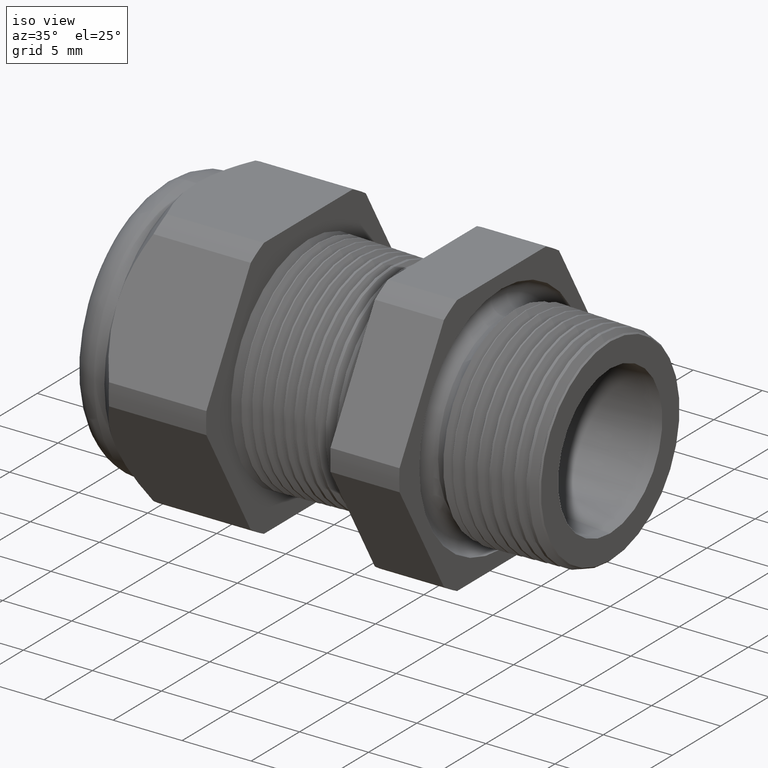
[diagram: clean part render]
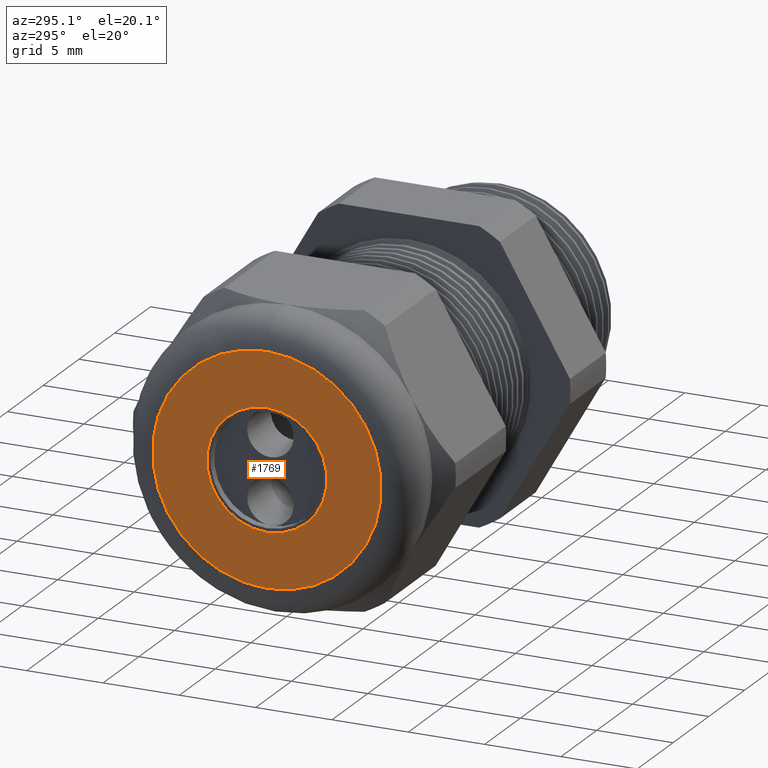
[diagram: tour spotlight — one face highlighted and labeled with its STEP entity id]
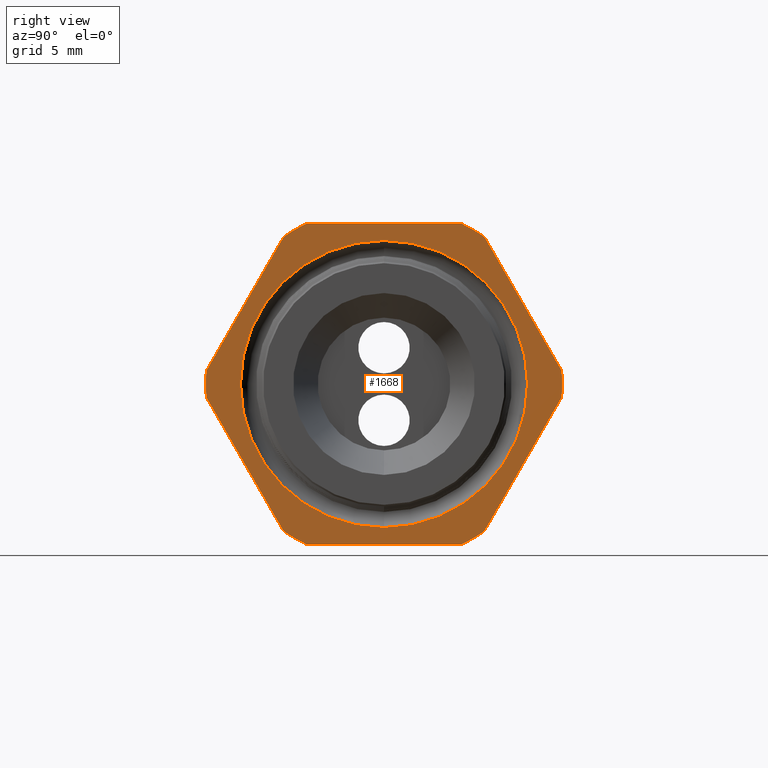
[diagram: tour spotlight — one face highlighted and labeled with its STEP entity id]
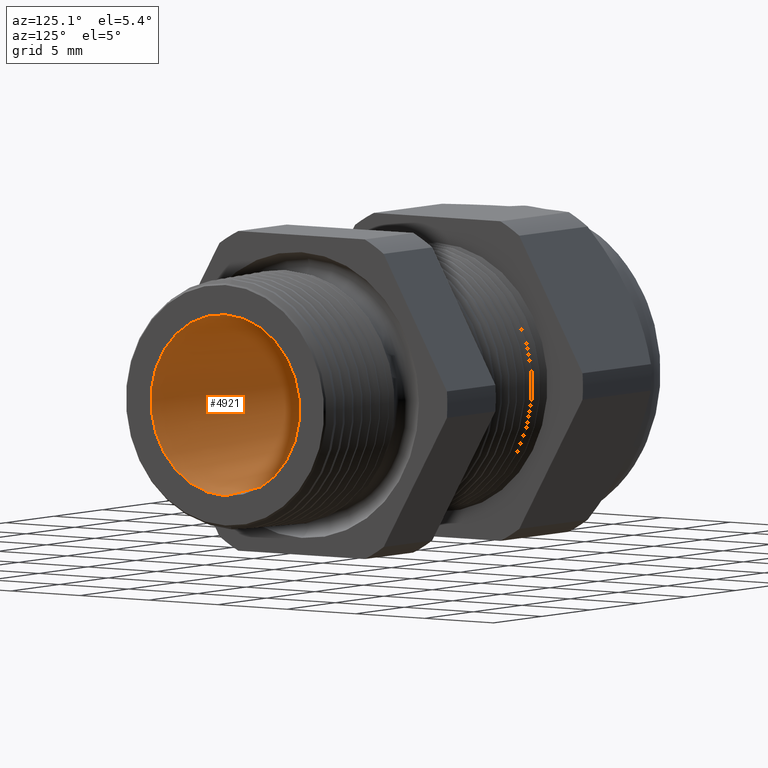
[diagram: tour spotlight — one face highlighted and labeled with its STEP entity id]
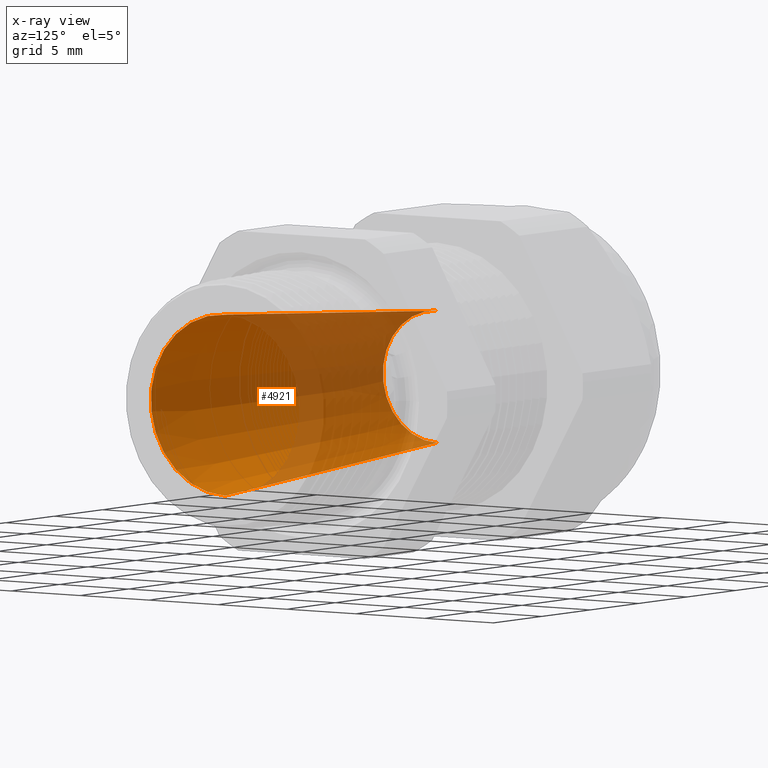
[diagram: x-ray of the same camera — body ghosted, this tour face saturated]
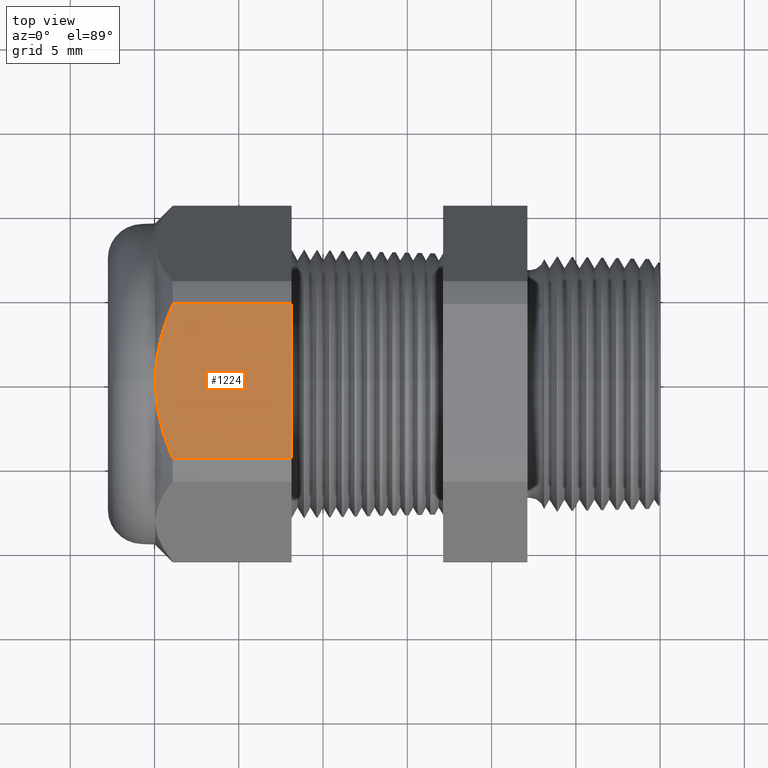
[diagram: tour spotlight — one face highlighted and labeled with its STEP entity id]
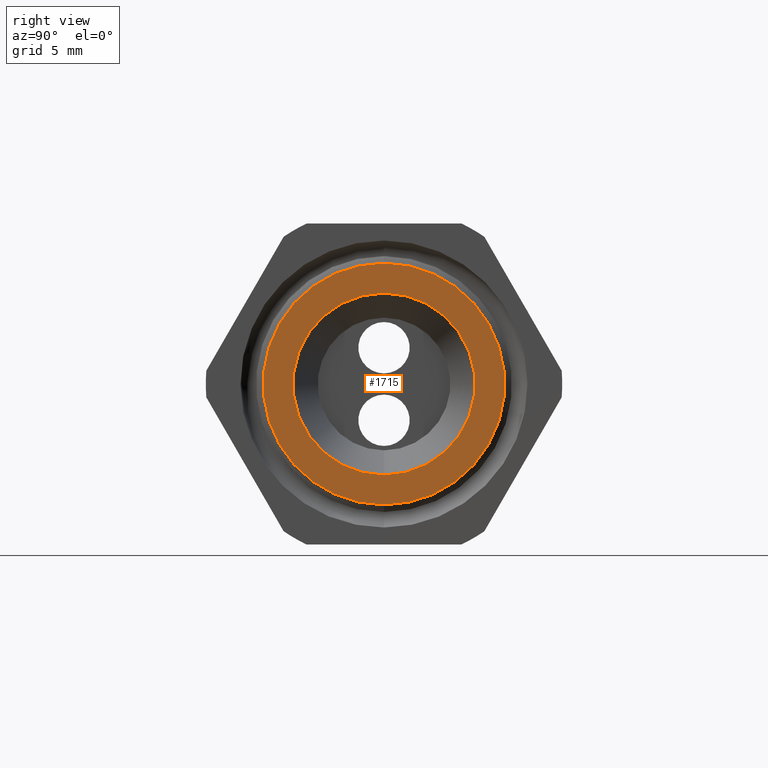
[diagram: tour spotlight — one face highlighted and labeled with its STEP entity id]
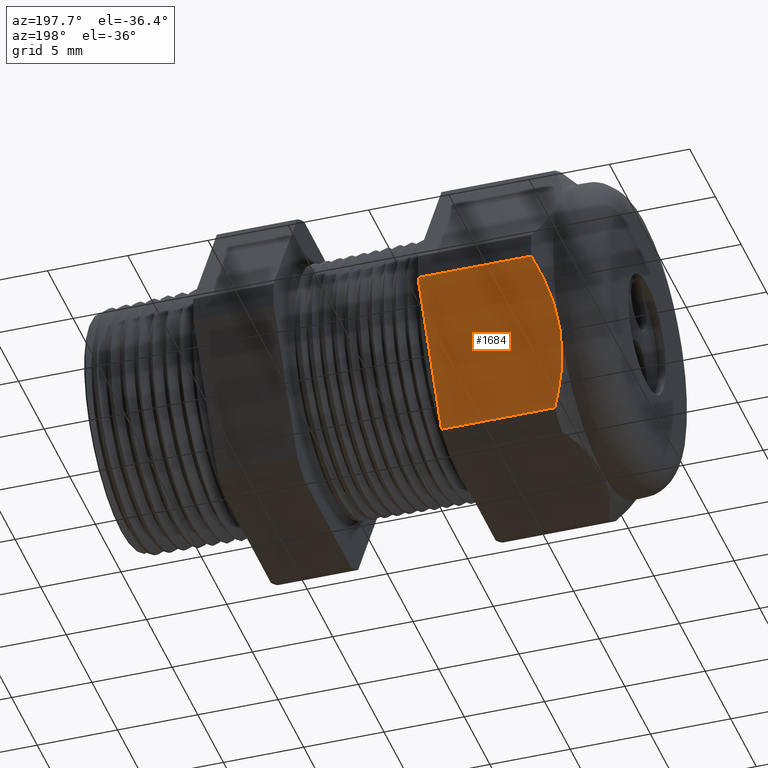
[diagram: tour spotlight — one face highlighted and labeled with its STEP entity id]
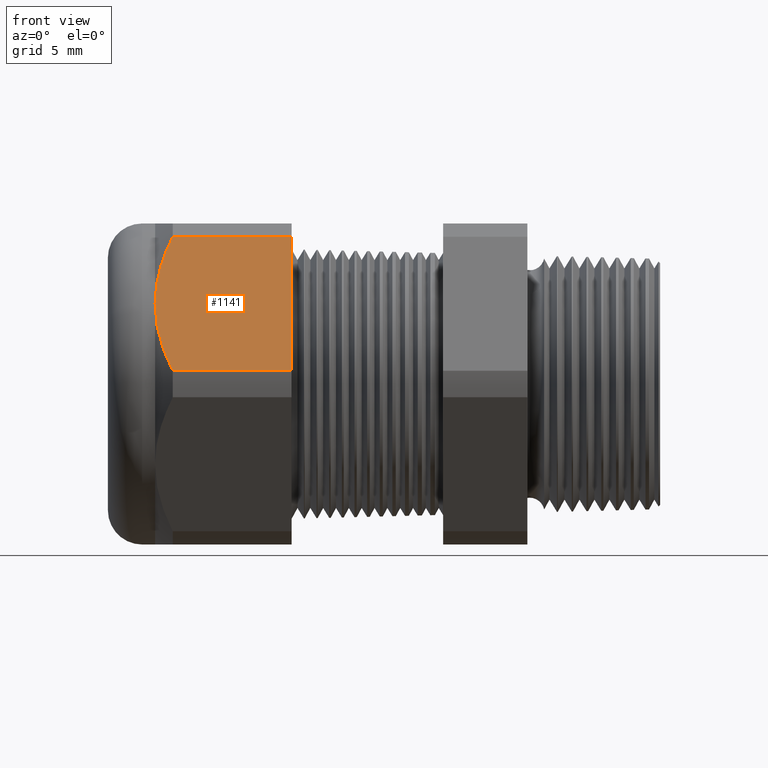
[diagram: tour spotlight — one face highlighted and labeled with its STEP entity id]
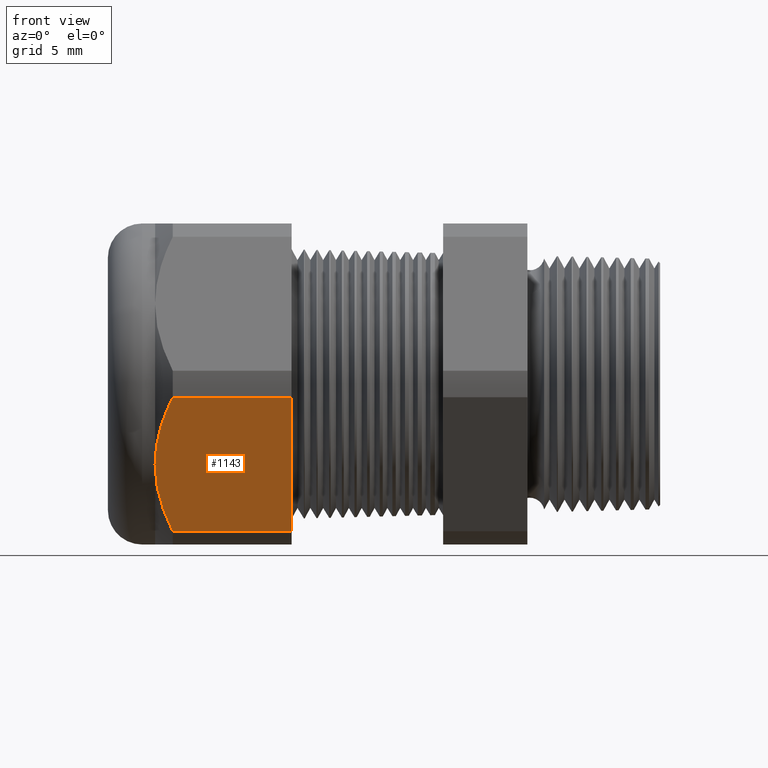
[diagram: tour spotlight — one face highlighted and labeled with its STEP entity id]
A machine part: a face-by-face anatomy tour. The part has 183 B-rep faces; the first image is the clean iso view, then the 8 largest visible faces are spotlighted one at a time (largest first), each with its STEP entity span.

Face 1 — auxiliary view, entity #1769. In plain terms, the highlighted planar face has unit normal (-1, 0, 0).
Definition (entity closure, byte-faithful):
#953 = CARTESIAN_POINT ( 'NONE',  ( -1.289999999999999800, 0.0000000000000000000, -0.1550000000000000000 ) ) ;
#964 = CARTESIAN_POINT ( 'NONE',  ( -1.289999999999999800, 1.898202538678397300E-017, 0.1550000000000000000 ) ) ;
#970 = DIRECTION ( 'NONE',  ( 0.0000000000000000000, 0.0000000000000000000, -1.000000000000000000 ) ) ;
#971 = DIRECTION ( 'NONE',  ( 1.000000000000000000, 0.0000000000000000000, 0.0000000000000000000 ) ) ;
#972 = AXIS2_PLACEMENT_3D ( 'NONE', #979, #971, #970 ) ;
#973 = CIRCLE ( 'NONE', #972, 0.1550000000000000000 ) ;
#979 = CARTESIAN_POINT ( 'NONE',  ( -1.289999999999999800, 0.0000000000000000000, 0.0000000000000000000 ) ) ;
#1346 = VERTEX_POINT ( 'NONE', #3254 ) ;
#1348 = EDGE_CURVE ( 'NONE', #1346, #1361, #3251, .T. ) ;
#1361 = VERTEX_POINT ( 'NONE', #3281 ) ;
#1690 = EDGE_LOOP ( 'NONE', ( #1691, #1692 ) ) ;
#1691 = ORIENTED_EDGE ( 'NONE', *, *, #1348, .T. ) ;
#1692 = ORIENTED_EDGE ( 'NONE', *, *, #1693, .T. ) ;
#1693 = EDGE_CURVE ( 'NONE', #1361, #1346, #3941, .T. ) ;
#1694 = EDGE_LOOP ( 'NONE', ( #1695, #1696 ) ) ;
#1695 = ORIENTED_EDGE ( 'NONE', *, *, #1766, .T. ) ;
#1696 = ORIENTED_EDGE ( 'NONE', *, *, #4942, .T. ) ;
#1766 = EDGE_CURVE ( 'NONE', #4918, #4944, #4088, .T. ) ;
#1769 = ADVANCED_FACE ( 'NONE', ( #4083, #4082 ), #4080, .T. ) ;
#3243 = DIRECTION ( 'NONE',  ( 0.0000000000000000000, 0.0000000000000000000, 1.000000000000000000 ) ) ;
#3244 = DIRECTION ( 'NONE',  ( -1.000000000000000000, 0.0000000000000000000, 0.0000000000000000000 ) ) ;
#3245 = CARTESIAN_POINT ( 'NONE',  ( -1.289999999999999800, 0.0000000000000000000, 0.0000000000000000000 ) ) ;
#3246 = AXIS2_PLACEMENT_3D ( 'NONE', #3245, #3244, #3243 ) ;
#3251 = CIRCLE ( 'NONE', #3246, 0.2950000000000001000 ) ;
#3254 = CARTESIAN_POINT ( 'NONE',  ( -1.289999999999999800, 0.0000000000000000000, 0.2950000000000001000 ) ) ;
#3281 = CARTESIAN_POINT ( 'NONE',  ( -1.289999999999999800, 4.102566777143634000E-017, -0.2950000000000001000 ) ) ;
#3938 = DIRECTION ( 'NONE',  ( 0.0000000000000000000, 0.0000000000000000000, 1.000000000000000000 ) ) ;
#3939 = DIRECTION ( 'NONE',  ( -1.000000000000000000, 0.0000000000000000000, 0.0000000000000000000 ) ) ;
#3940 = AXIS2_PLACEMENT_3D ( 'NONE', #3955, #3939, #3938 ) ;
#3941 = CIRCLE ( 'NONE', #3940, 0.2950000000000001000 ) ;
#3955 = CARTESIAN_POINT ( 'NONE',  ( -1.289999999999999800, 0.0000000000000000000, 0.0000000000000000000 ) ) ;
#4076 = DIRECTION ( 'NONE',  ( 0.0000000000000000000, 0.0000000000000000000, 1.000000000000000000 ) ) ;
#4077 = DIRECTION ( 'NONE',  ( -1.000000000000000000, 0.0000000000000000000, 0.0000000000000000000 ) ) ;
#4078 = CARTESIAN_POINT ( 'NONE',  ( -1.289999999999999800, 0.3750000000000000600, 0.0000000000000000000 ) ) ;
#4079 = AXIS2_PLACEMENT_3D ( 'NONE', #4078, #4077, #4076 ) ;
#4080 = PLANE ( 'NONE',  #4079 ) ;
#4082 = FACE_BOUND ( 'NONE', #1694, .T. ) ;
#4083 = FACE_OUTER_BOUND ( 'NONE', #1690, .T. ) ;
#4084 = DIRECTION ( 'NONE',  ( 0.0000000000000000000, 0.0000000000000000000, -1.000000000000000000 ) ) ;
#4085 = DIRECTION ( 'NONE',  ( 1.000000000000000000, 0.0000000000000000000, 0.0000000000000000000 ) ) ;
#4086 = CARTESIAN_POINT ( 'NONE',  ( -1.289999999999999800, 0.0000000000000000000, 0.0000000000000000000 ) ) ;
#4087 = AXIS2_PLACEMENT_3D ( 'NONE', #4086, #4085, #4084 ) ;
#4088 = CIRCLE ( 'NONE', #4087, 0.1550000000000000000 ) ;
#4918 = VERTEX_POINT ( 'NONE', #953 ) ;
#4942 = EDGE_CURVE ( 'NONE', #4944, #4918, #973, .T. ) ;
#4944 = VERTEX_POINT ( 'NONE', #964 ) ;

Face 2 — right view, entity #1668. In plain terms, the highlighted planar face has unit normal (1, 0, 0).
Definition (entity closure, byte-faithful):
#73 = CARTESIAN_POINT ( 'NONE',  ( -0.3100000000000000000, 0.0000000000000000000, -0.3352160785688592700 ) ) ;
#200 = DIRECTION ( 'NONE',  ( 0.0000000000000000000, 0.0000000000000000000, -1.000000000000000000 ) ) ;
#201 = DIRECTION ( 'NONE',  ( 1.000000000000000000, 0.0000000000000000000, 0.0000000000000000000 ) ) ;
#202 = CARTESIAN_POINT ( 'NONE',  ( -0.3100000000000000000, 0.0000000000000000000, 0.0000000000000000000 ) ) ;
#203 = AXIS2_PLACEMENT_3D ( 'NONE', #202, #201, #200 ) ;
#204 = CIRCLE ( 'NONE', #203, 0.3352160785688592700 ) ;
#219 = CARTESIAN_POINT ( 'NONE',  ( -0.3100000000000000000, 4.105212976420811500E-017, 0.3352160785688592700 ) ) ;
#1609 = EDGE_LOOP ( 'NONE', ( #1669, #1671 ) ) ;
#1647 = EDGE_CURVE ( 'NONE', #1728, #1648, #3841, .T. ) ;
#1648 = VERTEX_POINT ( 'NONE', #3837 ) ;
#1649 = ORIENTED_EDGE ( 'NONE', *, *, #1650, .T. ) ;
#1650 = EDGE_CURVE ( 'NONE', #1648, #1675, #3895, .T. ) ;
#1653 = EDGE_CURVE ( 'NONE', #1679, #1654, #3889, .T. ) ;
#1654 = VERTEX_POINT ( 'NONE', #3881 ) ;
#1655 = ORIENTED_EDGE ( 'NONE', *, *, #1656, .T. ) ;
#1656 = EDGE_CURVE ( 'NONE', #1654, #1657, #3880, .T. ) ;
#1657 = VERTEX_POINT ( 'NONE', #3875 ) ;
#1658 = ORIENTED_EDGE ( 'NONE', *, *, #1659, .T. ) ;
#1659 = EDGE_CURVE ( 'NONE', #1657, #1660, #3874, .T. ) ;
#1660 = VERTEX_POINT ( 'NONE', #3870 ) ;
#1661 = ORIENTED_EDGE ( 'NONE', *, *, #1662, .T. ) ;
#1662 = EDGE_CURVE ( 'NONE', #1660, #1663, #3869, .T. ) ;
#1663 = VERTEX_POINT ( 'NONE', #3864 ) ;
#1664 = ORIENTED_EDGE ( 'NONE', *, *, #1665, .T. ) ;
#1665 = EDGE_CURVE ( 'NONE', #1663, #1666, #3928, .T. ) ;
#1666 = VERTEX_POINT ( 'NONE', #3924 ) ;
#1667 = ORIENTED_EDGE ( 'NONE', *, *, #1721, .T. ) ;
#1668 = ADVANCED_FACE ( 'NONE', ( #3923, #3922 ), #3921, .T. ) ;
#1669 = ORIENTED_EDGE ( 'NONE', *, *, #1670, .F. ) ;
#1670 = EDGE_CURVE ( 'NONE', #2359, #2413, #3916, .T. ) ;
#1671 = ORIENTED_EDGE ( 'NONE', *, *, #2424, .F. ) ;
#1672 = EDGE_LOOP ( 'NONE', ( #1673, #1677, #1680, #1655, #1658, #1661, #1664, #1667, #1723, #1726, #1729, #1649 ) ) ;
#1673 = ORIENTED_EDGE ( 'NONE', *, *, #1674, .T. ) ;
#1674 = EDGE_CURVE ( 'NONE', #1675, #1676, #3910, .T. ) ;
#1675 = VERTEX_POINT ( 'NONE', #3906 ) ;
#1676 = VERTEX_POINT ( 'NONE', #3905 ) ;
#1677 = ORIENTED_EDGE ( 'NONE', *, *, #1678, .T. ) ;
#1678 = EDGE_CURVE ( 'NONE', #1676, #1679, #3904, .T. ) ;
#1679 = VERTEX_POINT ( 'NONE', #3899 ) ;
#1680 = ORIENTED_EDGE ( 'NONE', *, *, #1653, .T. ) ;
#1721 = EDGE_CURVE ( 'NONE', #1666, #1722, #4031, .T. ) ;
#1722 = VERTEX_POINT ( 'NONE', #4026 ) ;
#1723 = ORIENTED_EDGE ( 'NONE', *, *, #1724, .T. ) ;
#1724 = EDGE_CURVE ( 'NONE', #1722, #1725, #4025, .T. ) ;
#1725 = VERTEX_POINT ( 'NONE', #4020 ) ;
#1726 = ORIENTED_EDGE ( 'NONE', *, *, #1727, .T. ) ;
#1727 = EDGE_CURVE ( 'NONE', #1725, #1728, #4018, .T. ) ;
#1728 = VERTEX_POINT ( 'NONE', #4013 ) ;
#1729 = ORIENTED_EDGE ( 'NONE', *, *, #1647, .T. ) ;
#2359 = VERTEX_POINT ( 'NONE', #73 ) ;
#2413 = VERTEX_POINT ( 'NONE', #219 ) ;
#2424 = EDGE_CURVE ( 'NONE', #2413, #2359, #204, .T. ) ;
#3835 = CARTESIAN_POINT ( 'NONE',  ( -0.3100000000000000000, 0.0000000000000000000, 0.0000000000000000000 ) ) ;
#3837 = CARTESIAN_POINT ( 'NONE',  ( -0.3100000000000000000, 0.1806628420566884800, -0.3750000000000001100 ) ) ;
#3838 = DIRECTION ( 'NONE',  ( 0.0000000000000000000, 1.000000000000000000, 0.0000000000000000000 ) ) ;
#3839 = VECTOR ( 'NONE', #3838, 39.37007874015748100 ) ;
#3840 = CARTESIAN_POINT ( 'NONE',  ( -0.3100000000000000000, 0.7500000000000001100, -0.3750000000000001100 ) ) ;
#3841 = LINE ( 'NONE', #3840, #3839 ) ;
#3864 = CARTESIAN_POINT ( 'NONE',  ( -0.3100000000000000000, -0.2344281053908205100, 0.3439586107409878200 ) ) ;
#3865 = DIRECTION ( 'NONE',  ( 0.0000000000000000000, 0.0000000000000000000, -1.000000000000000000 ) ) ;
#3866 = DIRECTION ( 'NONE',  ( 1.000000000000000000, 0.0000000000000000000, 0.0000000000000000000 ) ) ;
#3867 = CARTESIAN_POINT ( 'NONE',  ( -0.3100000000000000000, 0.0000000000000000000, 0.0000000000000000000 ) ) ;
#3868 = AXIS2_PLACEMENT_3D ( 'NONE', #3867, #3866, #3865 ) ;
#3869 = CIRCLE ( 'NONE', #3868, 0.4162500000000000100 ) ;
#3870 = CARTESIAN_POINT ( 'NONE',  ( -0.3100000000000000000, -0.1806628420566886700, 0.3749999999999999400 ) ) ;
#3871 = DIRECTION ( 'NONE',  ( 0.0000000000000000000, -1.000000000000000000, 0.0000000000000000000 ) ) ;
#3872 = VECTOR ( 'NONE', #3871, 39.37007874015748100 ) ;
#3873 = CARTESIAN_POINT ( 'NONE',  ( -0.3100000000000000000, 0.7500000000000001100, 0.3749999999999999400 ) ) ;
#3874 = LINE ( 'NONE', #3873, #3872 ) ;
#3875 = CARTESIAN_POINT ( 'NONE',  ( -0.3100000000000000000, 0.1806628420566887000, 0.3749999999999999400 ) ) ;
#3876 = DIRECTION ( 'NONE',  ( 0.0000000000000000000, 0.0000000000000000000, -1.000000000000000000 ) ) ;
#3877 = DIRECTION ( 'NONE',  ( 1.000000000000000000, 0.0000000000000000000, 0.0000000000000000000 ) ) ;
#3878 = CARTESIAN_POINT ( 'NONE',  ( -0.3100000000000000000, 0.0000000000000000000, 0.0000000000000000000 ) ) ;
#3879 = AXIS2_PLACEMENT_3D ( 'NONE', #3878, #3877, #3876 ) ;
#3880 = CIRCLE ( 'NONE', #3879, 0.4162499999999999500 ) ;
#3881 = CARTESIAN_POINT ( 'NONE',  ( -0.3100000000000000000, 0.2344281053908206000, 0.3439586107409877100 ) ) ;
#3882 = DIRECTION ( 'NONE',  ( 0.0000000000000000000, -0.4999999999999998300, 0.8660254037844386000 ) ) ;
#3883 = VECTOR ( 'NONE', #3882, 39.37007874015748900 ) ;
#3884 = CARTESIAN_POINT ( 'NONE',  ( -0.3100000000000000000, 0.5122595264191646100, -0.1372595264191644500 ) ) ;
#3889 = LINE ( 'NONE', #3884, #3883 ) ;
#3892 = DIRECTION ( 'NONE',  ( 0.0000000000000000000, 0.0000000000000000000, -1.000000000000000000 ) ) ;
#3893 = DIRECTION ( 'NONE',  ( 1.000000000000000000, 0.0000000000000000000, 0.0000000000000000000 ) ) ;
#3894 = AXIS2_PLACEMENT_3D ( 'NONE', #3835, #3893, #3892 ) ;
#3895 = CIRCLE ( 'NONE', #3894, 0.4162500000000000100 ) ;
#3899 = CARTESIAN_POINT ( 'NONE',  ( -0.3100000000000000000, 0.4150909474475088000, 0.03104138925901233200 ) ) ;
#3900 = DIRECTION ( 'NONE',  ( 0.0000000000000000000, 0.0000000000000000000, -1.000000000000000000 ) ) ;
#3901 = DIRECTION ( 'NONE',  ( 1.000000000000000000, 0.0000000000000000000, 0.0000000000000000000 ) ) ;
#3902 = CARTESIAN_POINT ( 'NONE',  ( -0.3100000000000000000, 0.0000000000000000000, 0.0000000000000000000 ) ) ;
#3903 = AXIS2_PLACEMENT_3D ( 'NONE', #3902, #3901, #3900 ) ;
#3904 = CIRCLE ( 'NONE', #3903, 0.4162500000000000100 ) ;
#3905 = CARTESIAN_POINT ( 'NONE',  ( -0.3100000000000000000, 0.4150909474475088000, -0.03104138925901222000 ) ) ;
#3906 = CARTESIAN_POINT ( 'NONE',  ( -0.3100000000000000000, 0.2344281053908202900, -0.3439586107409879900 ) ) ;
#3907 = DIRECTION ( 'NONE',  ( 0.0000000000000000000, 0.5000000000000000000, 0.8660254037844386000 ) ) ;
#3908 = VECTOR ( 'NONE', #3907, 39.37007874015748900 ) ;
#3909 = CARTESIAN_POINT ( 'NONE',  ( -0.3100000000000000000, 0.5122595264191646100, 0.1372595264191644700 ) ) ;
#3910 = LINE ( 'NONE', #3909, #3908 ) ;
#3912 = DIRECTION ( 'NONE',  ( 0.0000000000000000000, 0.0000000000000000000, -1.000000000000000000 ) ) ;
#3913 = DIRECTION ( 'NONE',  ( 1.000000000000000000, 0.0000000000000000000, 0.0000000000000000000 ) ) ;
#3914 = CARTESIAN_POINT ( 'NONE',  ( -0.3100000000000000000, 0.0000000000000000000, 0.0000000000000000000 ) ) ;
#3915 = AXIS2_PLACEMENT_3D ( 'NONE', #3914, #3913, #3912 ) ;
#3916 = CIRCLE ( 'NONE', #3915, 0.3352160785688592700 ) ;
#3917 = DIRECTION ( 'NONE',  ( 0.0000000000000000000, 0.0000000000000000000, -1.000000000000000000 ) ) ;
#3918 = DIRECTION ( 'NONE',  ( 1.000000000000000000, 0.0000000000000000000, 0.0000000000000000000 ) ) ;
#3919 = CARTESIAN_POINT ( 'NONE',  ( -0.3100000000000000000, 0.7500000000000001100, 0.0000000000000000000 ) ) ;
#3920 = AXIS2_PLACEMENT_3D ( 'NONE', #3919, #3918, #3917 ) ;
#3921 = PLANE ( 'NONE',  #3920 ) ;
#3922 = FACE_OUTER_BOUND ( 'NONE', #1672, .T. ) ;
#3923 = FACE_BOUND ( 'NONE', #1609, .T. ) ;
#3924 = CARTESIAN_POINT ( 'NONE',  ( -0.3100000000000000000, -0.4150909474475088000, 0.03104138925901241800 ) ) ;
#3925 = DIRECTION ( 'NONE',  ( 0.0000000000000000000, -0.4999999999999998300, -0.8660254037844386000 ) ) ;
#3926 = VECTOR ( 'NONE', #3925, 39.37007874015748900 ) ;
#3927 = CARTESIAN_POINT ( 'NONE',  ( -0.3100000000000000000, -0.1372595264191648300, 0.5122595264191645000 ) ) ;
#3928 = LINE ( 'NONE', #3927, #3926 ) ;
#4013 = CARTESIAN_POINT ( 'NONE',  ( -0.3100000000000000000, -0.1806628420566883900, -0.3750000000000001100 ) ) ;
#4014 = DIRECTION ( 'NONE',  ( 0.0000000000000000000, 0.0000000000000000000, -1.000000000000000000 ) ) ;
#4015 = DIRECTION ( 'NONE',  ( 1.000000000000000000, 0.0000000000000000000, 0.0000000000000000000 ) ) ;
#4016 = CARTESIAN_POINT ( 'NONE',  ( -0.3100000000000000000, 0.0000000000000000000, 0.0000000000000000000 ) ) ;
#4017 = AXIS2_PLACEMENT_3D ( 'NONE', #4016, #4015, #4014 ) ;
#4018 = CIRCLE ( 'NONE', #4017, 0.4162500000000000100 ) ;
#4020 = CARTESIAN_POINT ( 'NONE',  ( -0.3100000000000000000, -0.2344281053908202100, -0.3439586107409880500 ) ) ;
#4021 = DIRECTION ( 'NONE',  ( 0.0000000000000000000, 0.5000000000000002200, -0.8660254037844384900 ) ) ;
#4022 = VECTOR ( 'NONE', #4021, 39.37007874015748900 ) ;
#4024 = CARTESIAN_POINT ( 'NONE',  ( -0.3100000000000000000, -0.1372595264191642800, -0.5122595264191648300 ) ) ;
#4025 = LINE ( 'NONE', #4024, #4022 ) ;
#4026 = CARTESIAN_POINT ( 'NONE',  ( -0.3100000000000000000, -0.4150909474475088000, -0.03104138925901237000 ) ) ;
#4027 = DIRECTION ( 'NONE',  ( 0.0000000000000000000, 0.0000000000000000000, -1.000000000000000000 ) ) ;
#4028 = DIRECTION ( 'NONE',  ( 1.000000000000000000, 0.0000000000000000000, 0.0000000000000000000 ) ) ;
#4029 = CARTESIAN_POINT ( 'NONE',  ( -0.3100000000000000000, 0.0000000000000000000, 0.0000000000000000000 ) ) ;
#4030 = AXIS2_PLACEMENT_3D ( 'NONE', #4029, #4028, #4027 ) ;
#4031 = CIRCLE ( 'NONE', #4030, 0.4162500000000000100 ) ;

Face 3 — auxiliary view, entity #4921. An x-ray twin of the same camera follows (body ghosted, this face saturated) — the face is partly hidden behind the body. In plain terms, the highlighted conical surface has half-angle 3.818 deg.
Definition (entity closure, byte-faithful):
#895 = CARTESIAN_POINT ( 'NONE',  ( -0.8608661417322833700, 0.0000000000000000000, -0.1550000000000000000 ) ) ;
#900 = CARTESIAN_POINT ( 'NONE',  ( -0.8608661417322833700, 2.250027807345431400E-017, 0.1550000000000000000 ) ) ;
#919 = CARTESIAN_POINT ( 'NONE',  ( 4.443791160244338600E-018, 2.601853076012465100E-017, 0.2124574267310359600 ) ) ;
#924 = CARTESIAN_POINT ( 'NONE',  ( 4.443791160244338600E-018, 0.0000000000000000000, -0.2124574267310359600 ) ) ;
#925 = DIRECTION ( 'NONE',  ( 0.9977800507276000100, 0.0000000000000000000, -0.06659557320143644200 ) ) ;
#926 = VECTOR ( 'NONE', #925, 39.37007874015748100 ) ;
#927 = CARTESIAN_POINT ( 'NONE',  ( -0.8608661417322833700, 0.0000000000000000000, -0.1550000000000000000 ) ) ;
#933 = LINE ( 'NONE', #927, #926 ) ;
#938 = DIRECTION ( 'NONE',  ( 0.0000000000000000000, 0.0000000000000000000, -1.000000000000000000 ) ) ;
#939 = DIRECTION ( 'NONE',  ( 1.000000000000000000, 0.0000000000000000000, 0.0000000000000000000 ) ) ;
#940 = CARTESIAN_POINT ( 'NONE',  ( -0.8608661417322833700, 0.0000000000000000000, 0.0000000000000000000 ) ) ;
#941 = AXIS2_PLACEMENT_3D ( 'NONE', #940, #939, #938 ) ;
#942 = CONICAL_SURFACE ( 'NONE', #941, 0.1550000000000000000, 0.06664489660048481000 ) ;
#944 = FACE_OUTER_BOUND ( 'NONE', #4923, .T. ) ;
#945 = DIRECTION ( 'NONE',  ( 0.9977800507276000100, 8.155605555852239100E-018, 0.06659557320143644200 ) ) ;
#946 = VECTOR ( 'NONE', #945, 39.37007874015748100 ) ;
#947 = CARTESIAN_POINT ( 'NONE',  ( -0.8608661417322833700, 1.898202538678397300E-017, 0.1550000000000000000 ) ) ;
#948 = LINE ( 'NONE', #947, #946 ) ;
#954 = DIRECTION ( 'NONE',  ( 0.0000000000000000000, 0.0000000000000000000, -1.000000000000000000 ) ) ;
#955 = DIRECTION ( 'NONE',  ( 1.000000000000000000, 0.0000000000000000000, 0.0000000000000000000 ) ) ;
#956 = CARTESIAN_POINT ( 'NONE',  ( -0.8608661417322833700, 0.0000000000000000000, 0.0000000000000000000 ) ) ;
#957 = AXIS2_PLACEMENT_3D ( 'NONE', #956, #955, #954 ) ;
#958 = CIRCLE ( 'NONE', #957, 0.1550000000000000000 ) ;
#984 = DIRECTION ( 'NONE',  ( 0.0000000000000000000, 0.0000000000000000000, -1.000000000000000000 ) ) ;
#985 = DIRECTION ( 'NONE',  ( 1.000000000000000000, 0.0000000000000000000, 0.0000000000000000000 ) ) ;
#986 = CARTESIAN_POINT ( 'NONE',  ( 4.443791160244338600E-018, 0.0000000000000000000, 0.0000000000000000000 ) ) ;
#987 = AXIS2_PLACEMENT_3D ( 'NONE', #986, #985, #984 ) ;
#988 = CIRCLE ( 'NONE', #987, 0.2124574267310359600 ) ;
#4899 = VERTEX_POINT ( 'NONE', #919 ) ;
#4908 = VERTEX_POINT ( 'NONE', #900 ) ;
#4911 = VERTEX_POINT ( 'NONE', #895 ) ;
#4913 = ORIENTED_EDGE ( 'NONE', *, *, #4920, .T. ) ;
#4914 = ORIENTED_EDGE ( 'NONE', *, *, #4917, .F. ) ;
#4917 = EDGE_CURVE ( 'NONE', #4908, #4911, #958, .T. ) ;
#4920 = EDGE_CURVE ( 'NONE', #4908, #4899, #948, .T. ) ;
#4921 = ADVANCED_FACE ( 'NONE', ( #944 ), #942, .F. ) ;
#4923 = EDGE_LOOP ( 'NONE', ( #4914, #4913, #4933, #4931 ) ) ;
#4929 = EDGE_CURVE ( 'NONE', #4911, #4930, #933, .T. ) ;
#4930 = VERTEX_POINT ( 'NONE', #924 ) ;
#4931 = ORIENTED_EDGE ( 'NONE', *, *, #4929, .F. ) ;
#4932 = EDGE_CURVE ( 'NONE', #4899, #4930, #988, .T. ) ;
#4933 = ORIENTED_EDGE ( 'NONE', *, *, #4932, .T. ) ;

Face 4 — top view, entity #1224. In plain terms, the highlighted planar face has unit normal (0, 0, 1).
Definition (entity closure, byte-faithful):
#1179 = VERTEX_POINT ( 'NONE', #2921 ) ;
#1192 = ORIENTED_EDGE ( 'NONE', *, *, #1194, .T. ) ;
#1194 = EDGE_CURVE ( 'NONE', #1570, #1197, #2947, .T. ) ;
#1195 = ORIENTED_EDGE ( 'NONE', *, *, #1196, .F. ) ;
#1196 = EDGE_CURVE ( 'NONE', #1220, #1197, #2946, .T. ) ;
#1197 = VERTEX_POINT ( 'NONE', #2936 ) ;
#1198 = EDGE_CURVE ( 'NONE', #1179, #1570, #2991, .T. ) ;
#1199 = ORIENTED_EDGE ( 'NONE', *, *, #1207, .T. ) ;
#1200 = ORIENTED_EDGE ( 'NONE', *, *, #1198, .T. ) ;
#1201 = EDGE_LOOP ( 'NONE', ( #1199, #1200, #1192, #1195, #1219 ) ) ;
#1202 = VERTEX_POINT ( 'NONE', #2990 ) ;
#1207 = EDGE_CURVE ( 'NONE', #1202, #1179, #2976, .T. ) ;
#1218 = EDGE_CURVE ( 'NONE', #1202, #1220, #3016, .T. ) ;
#1219 = ORIENTED_EDGE ( 'NONE', *, *, #1218, .F. ) ;
#1220 = VERTEX_POINT ( 'NONE', #3008 ) ;
#1224 = ADVANCED_FACE ( 'NONE', ( #3006 ), #3005, .T. ) ;
#1570 = VERTEX_POINT ( 'NONE', #3708 ) ;
#2921 = CARTESIAN_POINT ( 'NONE',  ( -1.138513779527558800, 0.1806628420566886700, 0.3749999999999999400 ) ) ;
#2936 = CARTESIAN_POINT ( 'NONE',  ( -1.138513779527558800, -0.1806628420566886700, 0.3749999999999999400 ) ) ;
#2937 = DIRECTION ( 'NONE',  ( -1.000000000000000000, 0.0000000000000000000, 0.0000000000000000000 ) ) ;
#2938 = VECTOR ( 'NONE', #2937, 39.37007874015748100 ) ;
#2939 = CARTESIAN_POINT ( 'NONE',  ( -1.138513779527558800, -0.1806628420566886700, 0.3749999999999999400 ) ) ;
#2940 = CARTESIAN_POINT ( 'NONE',  ( -1.150864619919064000, -0.1522063135617433800, 0.3749999999999999400 ) ) ;
#2941 = CARTESIAN_POINT ( 'NONE',  ( -1.161374803848830300, -0.1224209746056499300, 0.3750000000000000600 ) ) ;
#2942 = CARTESIAN_POINT ( 'NONE',  ( -1.175781561248279400, -0.06212512060126272600, 0.3749999999999999400 ) ) ;
#2943 = CARTESIAN_POINT ( 'NONE',  ( -1.179763779527558600, -0.03141195411055330200, 0.3750000000000000600 ) ) ;
#2944 = CARTESIAN_POINT ( 'NONE',  ( -1.179763779527558800, 0.0000000000000000000, 0.3749999999999999400 ) ) ;
#2945 = CARTESIAN_POINT ( 'NONE',  ( 0.0000000000000000000, -0.1806628420566886700, 0.3749999999999999400 ) ) ;
#2946 = LINE ( 'NONE', #2945, #2938 ) ;
#2947 = B_SPLINE_CURVE_WITH_KNOTS ( 'NONE', 3,
 ( #2944, #2943, #2942, #2941, #2940, #2939 ),
 .UNSPECIFIED., .F., .F.,
 ( 4, 2, 4 ),
 ( 0.01191928708821687700, 0.01426783552382355000, 0.01661638395943022100 ),
 .UNSPECIFIED. ) ;
#2973 = DIRECTION ( 'NONE',  ( -1.000000000000000000, 0.0000000000000000000, 0.0000000000000000000 ) ) ;
#2974 = VECTOR ( 'NONE', #2973, 39.37007874015748100 ) ;
#2975 = CARTESIAN_POINT ( 'NONE',  ( 0.0000000000000000000, 0.1806628420566887000, 0.3749999999999999400 ) ) ;
#2976 = LINE ( 'NONE', #2975, #2974 ) ;
#2982 = CARTESIAN_POINT ( 'NONE',  ( -1.179763779527558800, 0.0000000000000000000, 0.3749999999999999400 ) ) ;
#2983 = CARTESIAN_POINT ( 'NONE',  ( -1.179763779527558800, 0.01568637131276644900, 0.3749999999999999400 ) ) ;
#2984 = CARTESIAN_POINT ( 'NONE',  ( -1.178769479952293600, 0.03130286613836865500, 0.3749999999999999400 ) ) ;
#2985 = CARTESIAN_POINT ( 'NONE',  ( -1.174967165678734800, 0.06207756443688122700, 0.3749999999999999400 ) ) ;
#2986 = CARTESIAN_POINT ( 'NONE',  ( -1.172160678549065000, 0.07729185397029270100, 0.3749999999999999400 ) ) ;
#2987 = CARTESIAN_POINT ( 'NONE',  ( -1.161355067212263000, 0.1224785947535363300, 0.3749999999999998300 ) ) ;
#2988 = CARTESIAN_POINT ( 'NONE',  ( -1.150859887633265000, 0.1522172168218789700, 0.3749999999999998900 ) ) ;
#2989 = CARTESIAN_POINT ( 'NONE',  ( -1.138513779527558800, 0.1806628420566886700, 0.3749999999999999400 ) ) ;
#2990 = CARTESIAN_POINT ( 'NONE',  ( -0.8608661417322833700, 0.1806628420566887000, 0.3749999999999999400 ) ) ;
#2991 = B_SPLINE_CURVE_WITH_KNOTS ( 'NONE', 3,
 ( #2989, #2988, #2987, #2986, #2985, #2984, #2983, #2982 ),
 .UNSPECIFIED., .F., .F.,
 ( 4, 2, 2, 4 ),
 ( 0.007228053594460298600, 0.009573670341338588700, 0.01074647871477773200, 0.01191928708821687700 ),
 .UNSPECIFIED. ) ;
#3001 = DIRECTION ( 'NONE',  ( 1.000000000000000000, 0.0000000000000000000, 0.0000000000000000000 ) ) ;
#3002 = DIRECTION ( 'NONE',  ( 0.0000000000000000000, 0.0000000000000000000, 1.000000000000000000 ) ) ;
#3003 = CARTESIAN_POINT ( 'NONE',  ( 0.0000000000000000000, -0.1806628420566887000, 0.3749999999999999400 ) ) ;
#3004 = AXIS2_PLACEMENT_3D ( 'NONE', #3003, #3002, #3001 ) ;
#3005 = PLANE ( 'NONE',  #3004 ) ;
#3006 = FACE_OUTER_BOUND ( 'NONE', #1201, .T. ) ;
#3008 = CARTESIAN_POINT ( 'NONE',  ( -0.8608661417322833700, -0.1806628420566886700, 0.3749999999999999400 ) ) ;
#3009 = DIRECTION ( 'NONE',  ( 0.0000000000000000000, -1.000000000000000000, 0.0000000000000000000 ) ) ;
#3010 = VECTOR ( 'NONE', #3009, 39.37007874015748100 ) ;
#3011 = CARTESIAN_POINT ( 'NONE',  ( -0.8608661417322833700, 0.3150000000000000000, 0.3749999999999999400 ) ) ;
#3016 = LINE ( 'NONE', #3011, #3010 ) ;
#3708 = CARTESIAN_POINT ( 'NONE',  ( -1.179763779527558800, 0.0000000000000000000, 0.3749999999999999400 ) ) ;

Face 5 — right view, entity #1715. In plain terms, the highlighted planar face has unit normal (1, 0, 0).
Definition (entity closure, byte-faithful):
#919 = CARTESIAN_POINT ( 'NONE',  ( 4.443791160244338600E-018, 2.601853076012465100E-017, 0.2124574267310359600 ) ) ;
#924 = CARTESIAN_POINT ( 'NONE',  ( 4.443791160244338600E-018, 0.0000000000000000000, -0.2124574267310359600 ) ) ;
#984 = DIRECTION ( 'NONE',  ( 0.0000000000000000000, 0.0000000000000000000, -1.000000000000000000 ) ) ;
#985 = DIRECTION ( 'NONE',  ( 1.000000000000000000, 0.0000000000000000000, 0.0000000000000000000 ) ) ;
#986 = CARTESIAN_POINT ( 'NONE',  ( 4.443791160244338600E-018, 0.0000000000000000000, 0.0000000000000000000 ) ) ;
#987 = AXIS2_PLACEMENT_3D ( 'NONE', #986, #985, #984 ) ;
#988 = CIRCLE ( 'NONE', #987, 0.2124574267310359600 ) ;
#1457 = ORIENTED_EDGE ( 'NONE', *, *, #1697, .F. ) ;
#1572 = EDGE_CURVE ( 'NONE', #1573, #1574, #3707, .T. ) ;
#1573 = VERTEX_POINT ( 'NONE', #3702 ) ;
#1574 = VERTEX_POINT ( 'NONE', #3701 ) ;
#1697 = EDGE_CURVE ( 'NONE', #4930, #4899, #3937, .T. ) ;
#1698 = ORIENTED_EDGE ( 'NONE', *, *, #4932, .F. ) ;
#1715 = ADVANCED_FACE ( 'NONE', ( #3975, #3974 ), #3972, .T. ) ;
#1716 = EDGE_LOOP ( 'NONE', ( #1717, #1719 ) ) ;
#1717 = ORIENTED_EDGE ( 'NONE', *, *, #1718, .T. ) ;
#1718 = EDGE_CURVE ( 'NONE', #1574, #1573, #4035, .T. ) ;
#1719 = ORIENTED_EDGE ( 'NONE', *, *, #1572, .T. ) ;
#1720 = EDGE_LOOP ( 'NONE', ( #1457, #1698 ) ) ;
#3701 = CARTESIAN_POINT ( 'NONE',  ( 4.443791160244338600E-018, 0.0000000000000000000, 0.2821850060026069900 ) ) ;
#3702 = CARTESIAN_POINT ( 'NONE',  ( 4.443791160244338600E-018, 3.479625654900990700E-017, -0.2821850060026069900 ) ) ;
#3703 = DIRECTION ( 'NONE',  ( 0.0000000000000000000, 0.0000000000000000000, -1.000000000000000000 ) ) ;
#3704 = DIRECTION ( 'NONE',  ( 1.000000000000000000, 0.0000000000000000000, 0.0000000000000000000 ) ) ;
#3705 = CARTESIAN_POINT ( 'NONE',  ( 4.443791160244338600E-018, 0.0000000000000000000, 0.0000000000000000000 ) ) ;
#3706 = AXIS2_PLACEMENT_3D ( 'NONE', #3705, #3704, #3703 ) ;
#3707 = CIRCLE ( 'NONE', #3706, 0.2821850060026069900 ) ;
#3933 = DIRECTION ( 'NONE',  ( 0.0000000000000000000, 0.0000000000000000000, -1.000000000000000000 ) ) ;
#3934 = DIRECTION ( 'NONE',  ( 1.000000000000000000, 0.0000000000000000000, 0.0000000000000000000 ) ) ;
#3935 = CARTESIAN_POINT ( 'NONE',  ( 4.443791160244338600E-018, 0.0000000000000000000, 0.0000000000000000000 ) ) ;
#3936 = AXIS2_PLACEMENT_3D ( 'NONE', #3935, #3934, #3933 ) ;
#3937 = CIRCLE ( 'NONE', #3936, 0.2124574267310359600 ) ;
#3968 = DIRECTION ( 'NONE',  ( 0.0000000000000000000, 0.0000000000000000000, -1.000000000000000000 ) ) ;
#3969 = DIRECTION ( 'NONE',  ( 1.000000000000000000, 0.0000000000000000000, 0.0000000000000000000 ) ) ;
#3970 = CARTESIAN_POINT ( 'NONE',  ( 4.443791160244338600E-018, 0.2124574267310359600, 0.0000000000000000000 ) ) ;
#3971 = AXIS2_PLACEMENT_3D ( 'NONE', #3970, #3969, #3968 ) ;
#3972 = PLANE ( 'NONE',  #3971 ) ;
#3973 = CARTESIAN_POINT ( 'NONE',  ( 4.443791160244338600E-018, 0.0000000000000000000, 0.0000000000000000000 ) ) ;
#3974 = FACE_BOUND ( 'NONE', #1720, .T. ) ;
#3975 = FACE_OUTER_BOUND ( 'NONE', #1716, .T. ) ;
#4032 = DIRECTION ( 'NONE',  ( 0.0000000000000000000, 0.0000000000000000000, -1.000000000000000000 ) ) ;
#4033 = DIRECTION ( 'NONE',  ( 1.000000000000000000, 0.0000000000000000000, 0.0000000000000000000 ) ) ;
#4034 = AXIS2_PLACEMENT_3D ( 'NONE', #3973, #4033, #4032 ) ;
#4035 = CIRCLE ( 'NONE', #4034, 0.2821850060026069900 ) ;
#4899 = VERTEX_POINT ( 'NONE', #919 ) ;
#4930 = VERTEX_POINT ( 'NONE', #924 ) ;
#4932 = EDGE_CURVE ( 'NONE', #4899, #4930, #988, .T. ) ;

Face 6 — auxiliary view, entity #1684. In plain terms, the highlighted planar face has unit normal (0, 0.866, -0.5).
Definition (entity closure, byte-faithful):
#918 = CARTESIAN_POINT ( 'NONE',  ( -1.179763779527558800, 0.3247595264191646100, -0.1875000000000001100 ) ) ;
#1240 = VERTEX_POINT ( 'NONE', #3027 ) ;
#1241 = VERTEX_POINT ( 'NONE', #3026 ) ;
#1242 = EDGE_CURVE ( 'NONE', #1241, #1240, #3025, .T. ) ;
#1604 = ORIENTED_EDGE ( 'NONE', *, *, #1605, .T. ) ;
#1605 = EDGE_CURVE ( 'NONE', #4901, #1240, #3764, .T. ) ;
#1606 = ORIENTED_EDGE ( 'NONE', *, *, #1242, .F. ) ;
#1607 = ORIENTED_EDGE ( 'NONE', *, *, #1608, .F. ) ;
#1608 = EDGE_CURVE ( 'NONE', #1681, #1241, #3763, .T. ) ;
#1621 = VERTEX_POINT ( 'NONE', #3791 ) ;
#1623 = EDGE_CURVE ( 'NONE', #1681, #1621, #3790, .T. ) ;
#1681 = VERTEX_POINT ( 'NONE', #3898 ) ;
#1684 = ADVANCED_FACE ( 'NONE', ( #3967 ), #3961, .T. ) ;
#1685 = EDGE_LOOP ( 'NONE', ( #1686, #1687, #1604, #1606, #1607 ) ) ;
#1686 = ORIENTED_EDGE ( 'NONE', *, *, #1623, .T. ) ;
#1687 = ORIENTED_EDGE ( 'NONE', *, *, #1689, .T. ) ;
#1689 = EDGE_CURVE ( 'NONE', #1621, #4901, #3956, .T. ) ;
#3022 = DIRECTION ( 'NONE',  ( -1.000000000000000000, 0.0000000000000000000, 0.0000000000000000000 ) ) ;
#3023 = VECTOR ( 'NONE', #3022, 39.37007874015748100 ) ;
#3024 = CARTESIAN_POINT ( 'NONE',  ( 0.0000000000000000000, 0.4150909474475088000, -0.03104138925901223100 ) ) ;
#3025 = LINE ( 'NONE', #3024, #3023 ) ;
#3026 = CARTESIAN_POINT ( 'NONE',  ( -0.8608661417322833700, 0.4150909474475088000, -0.03104138925901223100 ) ) ;
#3027 = CARTESIAN_POINT ( 'NONE',  ( -1.138513779527558800, 0.4150909474475088000, -0.03104138925901223100 ) ) ;
#3754 = DIRECTION ( 'NONE',  ( 0.0000000000000000000, 0.5000000000000000000, 0.8660254037844386000 ) ) ;
#3755 = VECTOR ( 'NONE', #3754, 39.37007874015748900 ) ;
#3756 = CARTESIAN_POINT ( 'NONE',  ( -0.8608661417322833700, 0.4035095264191646000, -0.05110099890395097100 ) ) ;
#3757 = CARTESIAN_POINT ( 'NONE',  ( -1.138513779527558800, 0.4150909474475088000, -0.03104138925901223100 ) ) ;
#3758 = CARTESIAN_POINT ( 'NONE',  ( -1.151003202145915600, 0.4007030353962316400, -0.05596198394665682900 ) ) ;
#3759 = CARTESIAN_POINT ( 'NONE',  ( -1.161459219999149800, 0.3858321107701056500, -0.08171918095463424900 ) ) ;
#3760 = CARTESIAN_POINT ( 'NONE',  ( -1.175817769005222500, 0.3557072427410923900, -0.1338969829521926800 ) ) ;
#3761 = CARTESIAN_POINT ( 'NONE',  ( -1.179763779527558400, 0.3403893008356695900, -0.1604284365997730200 ) ) ;
#3762 = CARTESIAN_POINT ( 'NONE',  ( -1.179763779527558800, 0.3247595264191646100, -0.1875000000000001100 ) ) ;
#3763 = LINE ( 'NONE', #3756, #3755 ) ;
#3764 = B_SPLINE_CURVE_WITH_KNOTS ( 'NONE', 3,
 ( #3762, #3761, #3760, #3759, #3758, #3757 ),
 .UNSPECIFIED., .F., .F.,
 ( 4, 2, 4 ),
 ( 0.004709976344604661900, 0.007063225540252133200, 0.009416474735899604500 ),
 .UNSPECIFIED. ) ;
#3787 = DIRECTION ( 'NONE',  ( -1.000000000000000000, 0.0000000000000000000, 0.0000000000000000000 ) ) ;
#3788 = VECTOR ( 'NONE', #3787, 39.37007874015748100 ) ;
#3789 = CARTESIAN_POINT ( 'NONE',  ( 0.0000000000000000000, 0.2344281053908202900, -0.3439586107409879900 ) ) ;
#3790 = LINE ( 'NONE', #3789, #3788 ) ;
#3791 = CARTESIAN_POINT ( 'NONE',  ( -1.138513779527558800, 0.2344281053908202600, -0.3439586107409879900 ) ) ;
#3898 = CARTESIAN_POINT ( 'NONE',  ( -0.8608661417322833700, 0.2344281053908202900, -0.3439586107409879900 ) ) ;
#3942 = CARTESIAN_POINT ( 'NONE',  ( -1.179763779527558800, 0.3247595264191646100, -0.1875000000000001100 ) ) ;
#3943 = CARTESIAN_POINT ( 'NONE',  ( -1.179763779527558600, 0.3169392765875834200, -0.2010450700361805500 ) ) ;
#3945 = CARTESIAN_POINT ( 'NONE',  ( -1.178759730589040900, 0.3090355397383389200, -0.2147347438287267000 ) ) ;
#3946 = CARTESIAN_POINT ( 'NONE',  ( -1.174926254644834200, 0.2935887246993246200, -0.2414894122914183800 ) ) ;
#3947 = CARTESIAN_POINT ( 'NONE',  ( -1.172104445229484000, 0.2859780998530065400, -0.2546714012025871300 ) ) ;
#3948 = CARTESIAN_POINT ( 'NONE',  ( -1.161298346633054000, 0.2634379006963006900, -0.2937121713547228300 ) ) ;
#3950 = CARTESIAN_POINT ( 'NONE',  ( -1.150987746498826700, 0.2487982124163725400, -0.3190688552625291500 ) ) ;
#3951 = CARTESIAN_POINT ( 'NONE',  ( -1.138513779527558800, 0.2344281053908202600, -0.3439586107409879900 ) ) ;
#3956 = B_SPLINE_CURVE_WITH_KNOTS ( 'NONE', 3,
 ( #3951, #3950, #3948, #3947, #3946, #3945, #3943, #3942 ),
 .UNSPECIFIED., .F., .F.,
 ( 4, 2, 2, 4 ),
 ( 2.483253706007067000E-007, 0.002355112334987633500, 0.003532544339796147700, 0.004709976344604661900 ),
 .UNSPECIFIED. ) ;
#3957 = DIRECTION ( 'NONE',  ( 0.0000000000000000000, 0.5000000000000000000, 0.8660254037844386000 ) ) ;
#3958 = DIRECTION ( 'NONE',  ( 0.0000000000000000000, 0.8660254037844387100, -0.5000000000000001100 ) ) ;
#3959 = CARTESIAN_POINT ( 'NONE',  ( 0.0000000000000000000, 0.4150909474475088000, -0.03104138925901223100 ) ) ;
#3960 = AXIS2_PLACEMENT_3D ( 'NONE', #3959, #3958, #3957 ) ;
#3961 = PLANE ( 'NONE',  #3960 ) ;
#3967 = FACE_OUTER_BOUND ( 'NONE', #1685, .T. ) ;
#4901 = VERTEX_POINT ( 'NONE', #918 ) ;

Face 7 — front view, entity #1141. In plain terms, the highlighted planar face has unit normal (0, -0.866, 0.5).
Definition (entity closure, byte-faithful):
#1134 = VERTEX_POINT ( 'NONE', #2836 ) ;
#1135 = ORIENTED_EDGE ( 'NONE', *, *, #1210, .T. ) ;
#1136 = ORIENTED_EDGE ( 'NONE', *, *, #1139, .T. ) ;
#1139 = EDGE_CURVE ( 'NONE', #1212, #1134, #2834, .T. ) ;
#1141 = ADVANCED_FACE ( 'NONE', ( #2835 ), #2824, .T. ) ;
#1158 = EDGE_CURVE ( 'NONE', #1209, #1223, #2856, .T. ) ;
#1205 = EDGE_LOOP ( 'NONE', ( #1135, #1136, #1227, #1226, #1222 ) ) ;
#1209 = VERTEX_POINT ( 'NONE', #2972 ) ;
#1210 = EDGE_CURVE ( 'NONE', #1209, #1212, #2971, .T. ) ;
#1212 = VERTEX_POINT ( 'NONE', #2967 ) ;
#1222 = ORIENTED_EDGE ( 'NONE', *, *, #1158, .F. ) ;
#1223 = VERTEX_POINT ( 'NONE', #3007 ) ;
#1225 = VERTEX_POINT ( 'NONE', #3000 ) ;
#1226 = ORIENTED_EDGE ( 'NONE', *, *, #1228, .F. ) ;
#1227 = ORIENTED_EDGE ( 'NONE', *, *, #1229, .T. ) ;
#1228 = EDGE_CURVE ( 'NONE', #1223, #1225, #2999, .T. ) ;
#1229 = EDGE_CURVE ( 'NONE', #1134, #1225, #2995, .T. ) ;
#2820 = DIRECTION ( 'NONE',  ( 0.0000000000000000000, -0.4999999999999998300, -0.8660254037844386000 ) ) ;
#2821 = DIRECTION ( 'NONE',  ( 0.0000000000000000000, -0.8660254037844387100, 0.4999999999999998900 ) ) ;
#2822 = CARTESIAN_POINT ( 'NONE',  ( 0.0000000000000000000, -0.4150909474475088000, 0.03104138925901233800 ) ) ;
#2823 = AXIS2_PLACEMENT_3D ( 'NONE', #2822, #2821, #2820 ) ;
#2824 = PLANE ( 'NONE',  #2823 ) ;
#2825 = CARTESIAN_POINT ( 'NONE',  ( -1.179763779527558800, -0.3247595264191646700, 0.1875000000000000600 ) ) ;
#2826 = CARTESIAN_POINT ( 'NONE',  ( -1.179763779527558600, -0.3169392765875834700, 0.2010450700361805800 ) ) ;
#2827 = CARTESIAN_POINT ( 'NONE',  ( -1.178759730589040700, -0.3090355397383389700, 0.2147347438287265900 ) ) ;
#2828 = CARTESIAN_POINT ( 'NONE',  ( -1.174926254644834000, -0.2935887246993246200, 0.2414894122914182400 ) ) ;
#2829 = CARTESIAN_POINT ( 'NONE',  ( -1.172104445229484000, -0.2859780998530067100, 0.2546714012025870800 ) ) ;
#2830 = CARTESIAN_POINT ( 'NONE',  ( -1.161298346633054200, -0.2634379006963009100, 0.2937121713547228300 ) ) ;
#2831 = CARTESIAN_POINT ( 'NONE',  ( -1.150987746498826300, -0.2487982124163728700, 0.3190688552625288200 ) ) ;
#2832 = CARTESIAN_POINT ( 'NONE',  ( -1.138513779527558800, -0.2344281053908205700, 0.3439586107409878200 ) ) ;
#2834 = B_SPLINE_CURVE_WITH_KNOTS ( 'NONE', 3,
 ( #2832, #2831, #2830, #2829, #2828, #2827, #2826, #2825 ),
 .UNSPECIFIED., .F., .F.,
 ( 4, 2, 2, 4 ),
 ( 2.483253706007067000E-007, 0.002355112334987628700, 0.003532544339796142100, 0.004709976344604655800 ),
 .UNSPECIFIED. ) ;
#2835 = FACE_OUTER_BOUND ( 'NONE', #1205, .T. ) ;
#2836 = CARTESIAN_POINT ( 'NONE',  ( -1.179763779527558800, -0.3247595264191646700, 0.1875000000000000600 ) ) ;
#2848 = DIRECTION ( 'NONE',  ( 0.0000000000000000000, -0.4999999999999998300, -0.8660254037844386000 ) ) ;
#2849 = VECTOR ( 'NONE', #2848, 39.37007874015748900 ) ;
#2850 = CARTESIAN_POINT ( 'NONE',  ( -0.8608661417322833700, -0.2460095264191647400, 0.3238990010960491300 ) ) ;
#2856 = LINE ( 'NONE', #2850, #2849 ) ;
#2967 = CARTESIAN_POINT ( 'NONE',  ( -1.138513779527558800, -0.2344281053908205700, 0.3439586107409878200 ) ) ;
#2968 = DIRECTION ( 'NONE',  ( -1.000000000000000000, 0.0000000000000000000, 0.0000000000000000000 ) ) ;
#2969 = VECTOR ( 'NONE', #2968, 39.37007874015748100 ) ;
#2970 = CARTESIAN_POINT ( 'NONE',  ( 0.0000000000000000000, -0.2344281053908205100, 0.3439586107409878200 ) ) ;
#2971 = LINE ( 'NONE', #2970, #2969 ) ;
#2972 = CARTESIAN_POINT ( 'NONE',  ( -0.8608661417322833700, -0.2344281053908205100, 0.3439586107409878200 ) ) ;
#2992 = CARTESIAN_POINT ( 'NONE',  ( -1.179763779527558800, -0.3247595264191646700, 0.1875000000000000600 ) ) ;
#2995 = B_SPLINE_CURVE_WITH_KNOTS ( 'NONE', 3,
 ( #2992, #3052, #3051, #3050, #3049, #3048 ),
 .UNSPECIFIED., .F., .F.,
 ( 4, 2, 4 ),
 ( 0.004709976344604655800, 0.007063225540252123700, 0.009416474735899590600 ),
 .UNSPECIFIED. ) ;
#2996 = DIRECTION ( 'NONE',  ( -1.000000000000000000, 0.0000000000000000000, 0.0000000000000000000 ) ) ;
#2997 = VECTOR ( 'NONE', #2996, 39.37007874015748100 ) ;
#2998 = CARTESIAN_POINT ( 'NONE',  ( 0.0000000000000000000, -0.4150909474475088000, 0.03104138925901241800 ) ) ;
#2999 = LINE ( 'NONE', #2998, #2997 ) ;
#3000 = CARTESIAN_POINT ( 'NONE',  ( -1.138513779527558800, -0.4150909474475088000, 0.03104138925901241800 ) ) ;
#3007 = CARTESIAN_POINT ( 'NONE',  ( -0.8608661417322833700, -0.4150909474475088000, 0.03104138925901241800 ) ) ;
#3048 = CARTESIAN_POINT ( 'NONE',  ( -1.138513779527558800, -0.4150909474475088000, 0.03104138925901241800 ) ) ;
#3049 = CARTESIAN_POINT ( 'NONE',  ( -1.151003202145915600, -0.4007030353962315300, 0.05596198394665700300 ) ) ;
#3050 = CARTESIAN_POINT ( 'NONE',  ( -1.161459219999149800, -0.3858321107701056500, 0.08171918095463433200 ) ) ;
#3051 = CARTESIAN_POINT ( 'NONE',  ( -1.175817769005222300, -0.3557072427410923900, 0.1338969829521927100 ) ) ;
#3052 = CARTESIAN_POINT ( 'NONE',  ( -1.179763779527558400, -0.3403893008356696500, 0.1604284365997730700 ) ) ;

Face 8 — front view, entity #1143. In plain terms, the highlighted planar face has unit normal (0, -0.866, -0.5).
Definition (entity closure, byte-faithful):
#1138 = ORIENTED_EDGE ( 'NONE', *, *, #1160, .F. ) ;
#1140 = VERTEX_POINT ( 'NONE', #2833 ) ;
#1142 = ORIENTED_EDGE ( 'NONE', *, *, #1155, .T. ) ;
#1143 = ADVANCED_FACE ( 'NONE', ( #2819 ), #2818, .T. ) ;
#1145 = EDGE_LOOP ( 'NONE', ( #1142, #1639, #1642, #1645, #1138 ) ) ;
#1149 = VERTEX_POINT ( 'NONE', #2868 ) ;
#1154 = VERTEX_POINT ( 'NONE', #2862 ) ;
#1155 = EDGE_CURVE ( 'NONE', #1149, #1154, #2861, .T. ) ;
#1160 = EDGE_CURVE ( 'NONE', #1149, #1140, #2846, .T. ) ;
#1639 = ORIENTED_EDGE ( 'NONE', *, *, #1640, .T. ) ;
#1640 = EDGE_CURVE ( 'NONE', #1154, #1641, #3863, .T. ) ;
#1641 = VERTEX_POINT ( 'NONE', #3862 ) ;
#1642 = ORIENTED_EDGE ( 'NONE', *, *, #1643, .T. ) ;
#1643 = EDGE_CURVE ( 'NONE', #1641, #1644, #3853, .T. ) ;
#1644 = VERTEX_POINT ( 'NONE', #3852 ) ;
#1645 = ORIENTED_EDGE ( 'NONE', *, *, #1646, .F. ) ;
#1646 = EDGE_CURVE ( 'NONE', #1140, #1644, #3845, .T. ) ;
#2814 = DIRECTION ( 'NONE',  ( 0.0000000000000000000, 0.5000000000000002200, -0.8660254037844384900 ) ) ;
#2815 = DIRECTION ( 'NONE',  ( 0.0000000000000000000, -0.8660254037844386000, -0.5000000000000003300 ) ) ;
#2816 = CARTESIAN_POINT ( 'NONE',  ( 0.0000000000000000000, -0.2344281053908202900, -0.3439586107409879900 ) ) ;
#2817 = AXIS2_PLACEMENT_3D ( 'NONE', #2816, #2815, #2814 ) ;
#2818 = PLANE ( 'NONE',  #2817 ) ;
#2819 = FACE_OUTER_BOUND ( 'NONE', #1145, .T. ) ;
#2833 = CARTESIAN_POINT ( 'NONE',  ( -0.8608661417322833700, -0.2344281053908202100, -0.3439586107409880500 ) ) ;
#2846 = LINE ( 'NONE', #2901, #2900 ) ;
#2858 = DIRECTION ( 'NONE',  ( -1.000000000000000000, 0.0000000000000000000, 0.0000000000000000000 ) ) ;
#2859 = VECTOR ( 'NONE', #2858, 39.37007874015748100 ) ;
#2860 = CARTESIAN_POINT ( 'NONE',  ( 0.0000000000000000000, -0.4150909474475088000, -0.03104138925901237000 ) ) ;
#2861 = LINE ( 'NONE', #2860, #2859 ) ;
#2862 = CARTESIAN_POINT ( 'NONE',  ( -1.138513779527558800, -0.4150909474475088000, -0.03104138925901235900 ) ) ;
#2868 = CARTESIAN_POINT ( 'NONE',  ( -0.8608661417322833700, -0.4150909474475088000, -0.03104138925901237000 ) ) ;
#2899 = DIRECTION ( 'NONE',  ( 0.0000000000000000000, 0.5000000000000002200, -0.8660254037844384900 ) ) ;
#2900 = VECTOR ( 'NONE', #2899, 39.37007874015748900 ) ;
#2901 = CARTESIAN_POINT ( 'NONE',  ( -0.8608661417322833700, -0.2460095264191644600, -0.3238990010960492400 ) ) ;
#3842 = DIRECTION ( 'NONE',  ( -1.000000000000000000, 0.0000000000000000000, 0.0000000000000000000 ) ) ;
#3843 = VECTOR ( 'NONE', #3842, 39.37007874015748100 ) ;
#3844 = CARTESIAN_POINT ( 'NONE',  ( 0.0000000000000000000, -0.2344281053908202100, -0.3439586107409880500 ) ) ;
#3845 = LINE ( 'NONE', #3844, #3843 ) ;
#3846 = CARTESIAN_POINT ( 'NONE',  ( -1.138513779527558800, -0.2344281053908201800, -0.3439586107409879900 ) ) ;
#3847 = CARTESIAN_POINT ( 'NONE',  ( -1.151003202145915100, -0.2488160174420975000, -0.3190380160533434200 ) ) ;
#3848 = CARTESIAN_POINT ( 'NONE',  ( -1.161459219999150000, -0.2636869420682234100, -0.2932808190453660100 ) ) ;
#3849 = CARTESIAN_POINT ( 'NONE',  ( -1.175817769005222500, -0.2938118100972367800, -0.2411030170478076800 ) ) ;
#3850 = CARTESIAN_POINT ( 'NONE',  ( -1.179763779527558400, -0.3091297520026593500, -0.2145715634002272300 ) ) ;
#3851 = CARTESIAN_POINT ( 'NONE',  ( -1.179763779527558800, -0.3247595264191645600, -0.1875000000000001900 ) ) ;
#3852 = CARTESIAN_POINT ( 'NONE',  ( -1.138513779527558800, -0.2344281053908201800, -0.3439586107409879900 ) ) ;
#3853 = B_SPLINE_CURVE_WITH_KNOTS ( 'NONE', 3,
 ( #3851, #3850, #3849, #3848, #3847, #3846 ),
 .UNSPECIFIED., .F., .F.,
 ( 4, 2, 4 ),
 ( 0.004709976344604660200, 0.007063225540252129700, 0.009416474735899599300 ),
 .UNSPECIFIED. ) ;
#3854 = CARTESIAN_POINT ( 'NONE',  ( -1.179763779527558800, -0.3247595264191645600, -0.1875000000000001900 ) ) ;
#3855 = CARTESIAN_POINT ( 'NONE',  ( -1.179763779527558400, -0.3325797762507455800, -0.1739549299638197500 ) ) ;
#3856 = CARTESIAN_POINT ( 'NONE',  ( -1.178759730589040700, -0.3404835130999903600, -0.1602652561712736000 ) ) ;
#3857 = CARTESIAN_POINT ( 'NONE',  ( -1.174926254644834200, -0.3559303281390047100, -0.1335105877085819800 ) ) ;
#3858 = CARTESIAN_POINT ( 'NONE',  ( -1.172104445229484900, -0.3635409529853225200, -0.1203285987974131300 ) ) ;
#3859 = CARTESIAN_POINT ( 'NONE',  ( -1.161298346633054000, -0.3860811521420284800, -0.08128782864527750500 ) ) ;
#3860 = CARTESIAN_POINT ( 'NONE',  ( -1.150987746498826300, -0.4007208404219565500, -0.05593114473747130800 ) ) ;
#3861 = CARTESIAN_POINT ( 'NONE',  ( -1.138513779527558800, -0.4150909474475088000, -0.03104138925901235900 ) ) ;
#3862 = CARTESIAN_POINT ( 'NONE',  ( -1.179763779527558800, -0.3247595264191645600, -0.1875000000000001900 ) ) ;
#3863 = B_SPLINE_CURVE_WITH_KNOTS ( 'NONE', 3,
 ( #3861, #3860, #3859, #3858, #3857, #3856, #3855, #3854 ),
 .UNSPECIFIED., .F., .F.,
 ( 4, 2, 2, 4 ),
 ( 2.483253706005244800E-007, 0.002355112334987629600, 0.003532544339796146000, 0.004709976344604660200 ),
 .UNSPECIFIED. ) ;